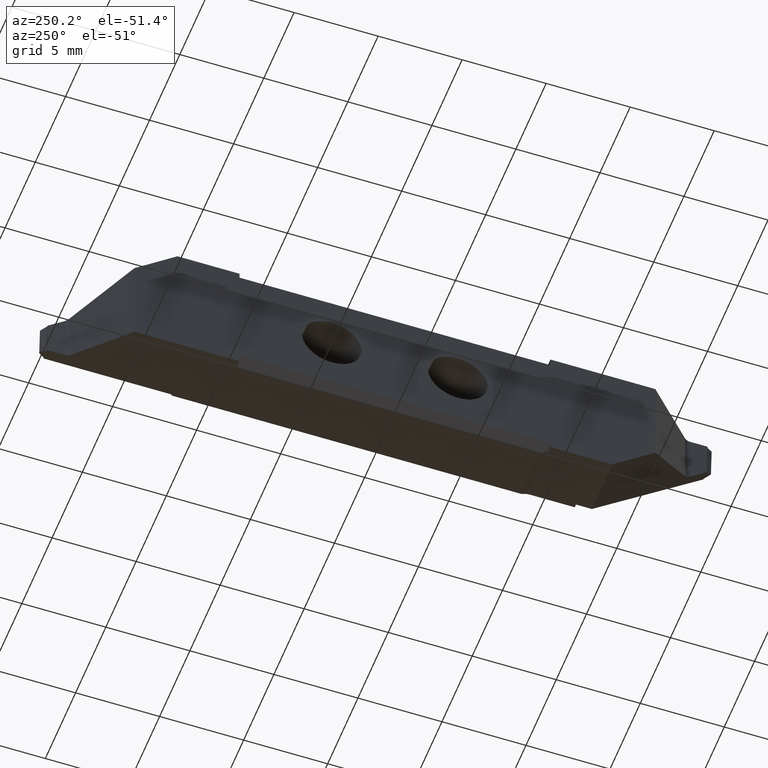
[diagram: clean part render]
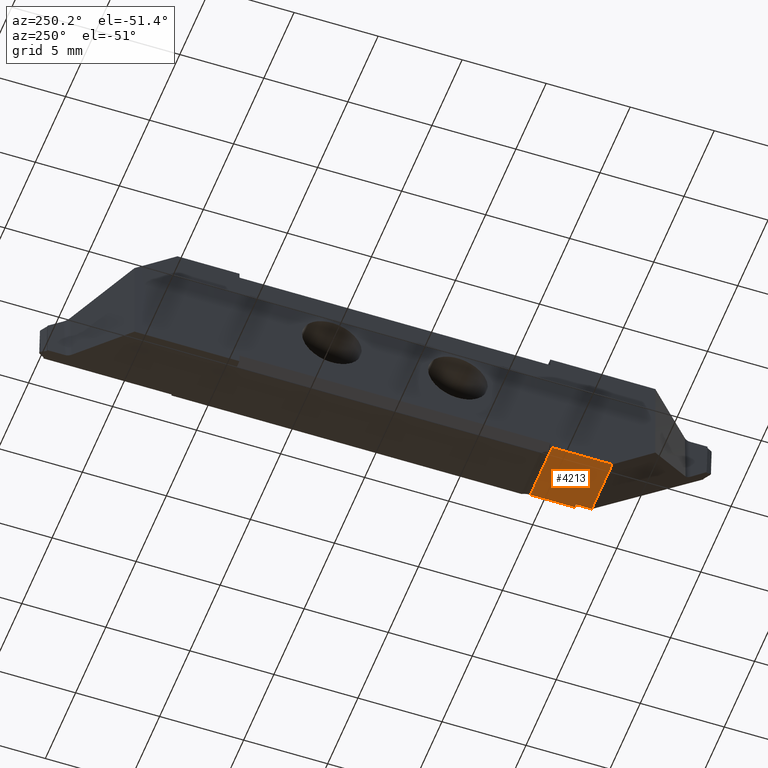
[diagram: same view with one face highlighted and labeled with its STEP entity id]
A machine part, auxiliary view. The second image highlights one B-rep face of the part: STEP entity #4213.
In plain terms, the highlighted planar face has unit normal (0, 0, 1).
Its self-contained STEP definition (entity closure, byte-faithful):
#90=CARTESIAN_POINT('',(-1.548529156E-06,7.062103611,-7.85));
#91=DIRECTION('',(0.,1.,0.));
#92=VECTOR('',#91,3.583301723);
#93=LINE('',#90,#92);
#94=CARTESIAN_POINT('',(-1.548529156E-06,7.062103611,-7.85));
#95=VERTEX_POINT('',#94);
#96=CARTESIAN_POINT('',(-1.548529156E-06,10.64540533,-7.85));
#97=VERTEX_POINT('',#96);
#98=EDGE_CURVE('',#95,#97,#93,.T.);
#753=CARTESIAN_POINT('',(3.392976192,7.062103611,-7.850000669));
#754=VERTEX_POINT('',#753);
#765=CARTESIAN_POINT('',(3.392976192,7.062103611,-7.850000669));
#766=DIRECTION('',(-1.,0.,1.972648605E-07));
#767=VECTOR('',#766,3.39297774);
#768=LINE('',#765,#767);
#769=EDGE_CURVE('',#754,#95,#768,.T.);
#817=CARTESIAN_POINT('',(3.392976192,8.,-7.850000669));
#818=VERTEX_POINT('',#817);
#829=CARTESIAN_POINT('',(3.392976192,8.,-7.850000669));
#830=DIRECTION('',(0.,-1.,0.));
#831=VECTOR('',#830,0.9378963886);
#832=LINE('',#829,#831);
#833=EDGE_CURVE('',#818,#754,#832,.T.);
#1187=CARTESIAN_POINT('',(3.599998451,8.,-7.85000071));
#1188=VERTEX_POINT('',#1187);
#1199=CARTESIAN_POINT('',(3.599998451,8.,-7.85000071));
#1200=DIRECTION('',(-1.,0.,1.972648609E-07));
#1201=VECTOR('',#1200,0.2070222597);
#1202=LINE('',#1199,#1201);
#1203=EDGE_CURVE('',#1188,#818,#1202,.T.);
#4079=CARTESIAN_POINT('',(3.599998451,10.64540533,-7.85000071));
#4080=DIRECTION('',(-1.,0.,1.972648605E-07));
#4081=VECTOR('',#4080,3.6);
#4082=LINE('',#4079,#4081);
#4083=CARTESIAN_POINT('',(3.599998451,10.64540533,-7.85000071));
#4084=VERTEX_POINT('',#4083);
#4085=EDGE_CURVE('',#4084,#97,#4082,.T.);
#4147=CARTESIAN_POINT('',(2.199998451,8.453754473,-7.850000434));
#4148=DIRECTION('',(1.972648607E-07,0.,1.));
#4149=DIRECTION('',(1.,0.,0.));
#4150=AXIS2_PLACEMENT_3D('',#4147,#4148,#4149);
#4151=PLANE('',#4150);
#4152=ORIENTED_EDGE('Edge 698',*,*,#4085,.F.);
#4161=ORIENTED_EDGE('Edge 85',*,*,#98,.T.);
#4170=ORIENTED_EDGE('Edge 679',*,*,#769,.T.);
#4179=ORIENTED_EDGE('Edge 1676',*,*,#833,.T.);
#4188=ORIENTED_EDGE('Edge 1646',*,*,#1203,.T.);
#4197=CARTESIAN_POINT('',(3.599998451,8.,-7.85000071));
#4198=DIRECTION('',(0.,1.,0.));
#4199=VECTOR('',#4198,2.645405335);
#4200=LINE('',#4197,#4199);
#4201=EDGE_CURVE('',#1188,#4084,#4200,.T.);
#4202=ORIENTED_EDGE('Edge 207',*,*,#4201,.F.);
#4211=EDGE_LOOP('',(#4202,#4188,#4179,#4170,#4161,#4152));
#4212=FACE_OUTER_BOUND('Loop 299',#4211,.T.);
#4213=ADVANCED_FACE('Face 300',(#4212),#4151,.F.);